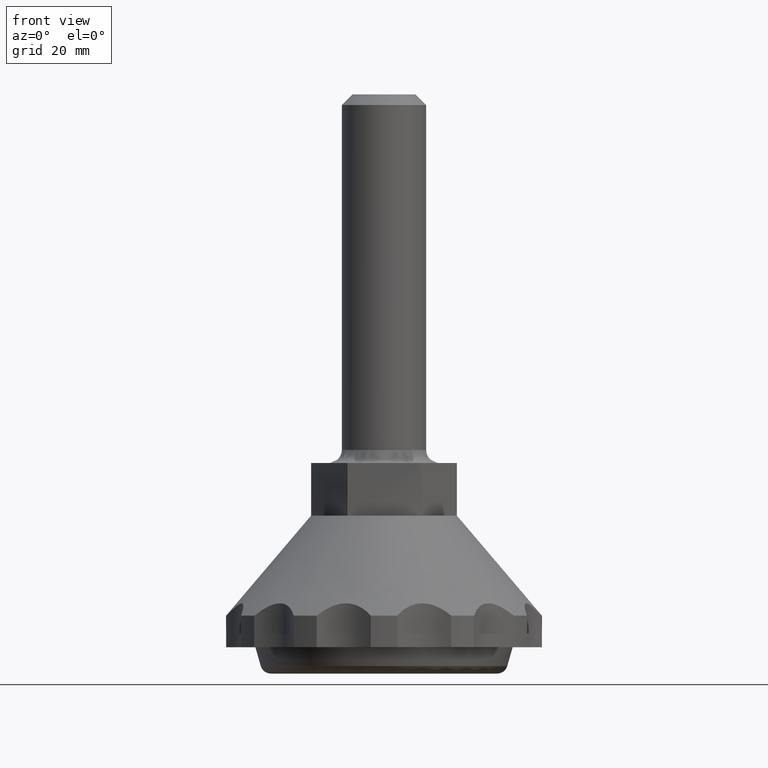
[diagram: clean part render]
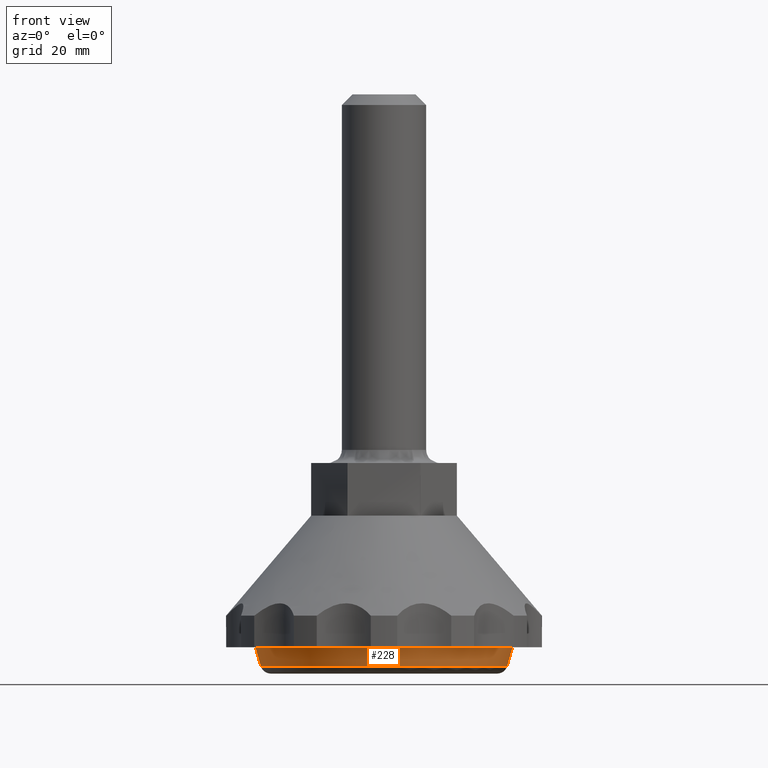
[diagram: same view with one face highlighted and labeled with its STEP entity id]
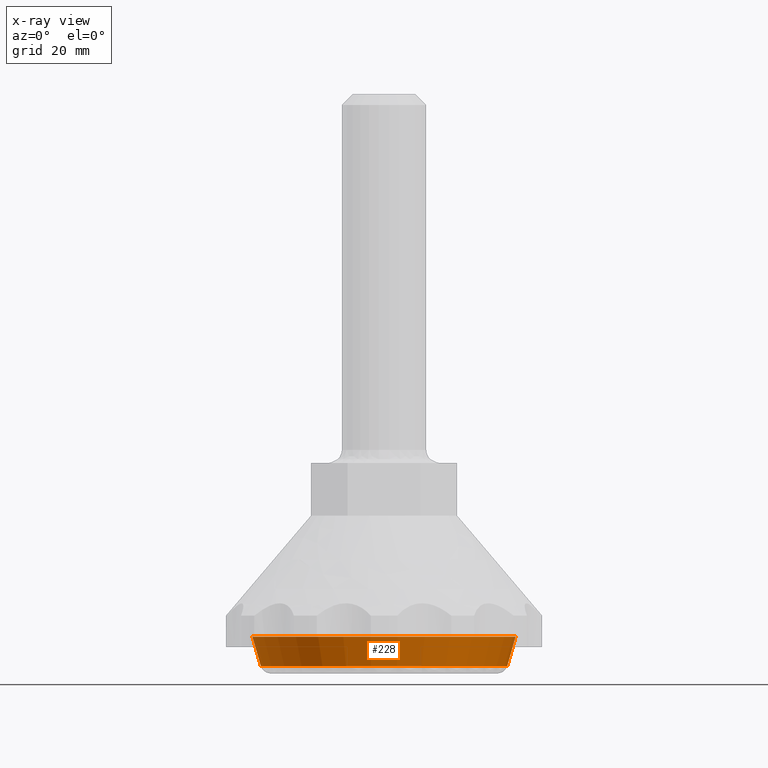
[diagram: x-ray of the same camera — body ghosted, the highlighted face saturated]
A machine part, front view. The second image highlights one B-rep face of the part: STEP entity #228.
The next image is the same camera in x-ray: the body ghosted, the highlighted face saturated — about 0% of this face is hidden behind the body in this view.
In plain terms, the highlighted face is a freeform B-spline surface patch.
Its self-contained STEP definition (entity closure, byte-faithful):
#228=ADVANCED_FACE('',(#721),#720,.T.);
#720=( BOUNDED_SURFACE() B_SPLINE_SURFACE( 2,1,((#1684,#1685),(#1686,#1687),(#1688,#1689),(#1690,#1691),(#1692,#1693)), .UNSPECIFIED.,.F.,.F.,.F.) B_SPLINE_SURFACE_WITH_KNOTS((3,2,3),(2,2),(0.00000000000E+00,5.00000000000E-01,1.00000000000E+00),(0.00000000000E+00,1.00000000000E+00), .UNSPECIFIED. ) GEOMETRIC_REPRESENTATION_ITEM() RATIONAL_B_SPLINE_SURFACE(((1.00000000000E+00,1.00000000000E+00),(7.07106781187E-01,7.07106781187E-01),(1.00000000000E+00,1.00000000000E+00),(7.07106781187E-01,7.07106781187E-01),(1.00000000000E+00,1.00000000000E+00))) REPRESENTATION_ITEM('') SURFACE() );
#721=FACE_OUTER_BOUND('',#1694,.T.);
#1684=CARTESIAN_POINT('',(-2.34144448943E+01,-5.73488499873E-15,1.45055774088E+00));
#1685=CARTESIAN_POINT('',(-2.49999994104E+01,-6.12323385134E-15,7.00000000000E+00));
#1686=CARTESIAN_POINT('',(-2.34144448943E+01,-2.34144448943E+01,1.45055774088E+00));
#1687=CARTESIAN_POINT('',(-2.49999994104E+01,-2.49999994104E+01,7.00000000000E+00));
#1688=CARTESIAN_POINT('',(4.30116374905E-15,-2.34144448943E+01,1.45055774088E+00));
#1689=CARTESIAN_POINT('',(4.59242538850E-15,-2.49999994104E+01,7.00000000000E+00));
#1690=CARTESIAN_POINT('',(2.34144448943E+01,-2.34144448943E+01,1.45055774088E+00));
#1691=CARTESIAN_POINT('',(2.49999994104E+01,-2.49999994104E+01,7.00000000000E+00));
#1692=CARTESIAN_POINT('',(2.34144448943E+01,2.86744249937E-15,1.45055774088E+00));
#1693=CARTESIAN_POINT('',(2.49999994104E+01,3.06161692567E-15,7.00000000000E+00));
#1694=EDGE_LOOP('',(#2382,#2383,#2384,#2385));
#2382=ORIENTED_EDGE('',*,*,#2799,.T.);
#2383=ORIENTED_EDGE('',*,*,#2800,.F.);
#2384=ORIENTED_EDGE('',*,*,#2796,.F.);
#2385=ORIENTED_EDGE('',*,*,#2801,.T.);
#2796=EDGE_CURVE('',#3626,#3633,#3634,.T.);
#2799=EDGE_CURVE('',#3652,#3653,#3654,.T.);
#2800=EDGE_CURVE('',#3633,#3653,#3660,.T.);
#2801=EDGE_CURVE('',#3626,#3652,#3666,.T.);
#3626=VERTEX_POINT('',#5073);
#3633=VERTEX_POINT('',#5077);
#3634=CIRCLE('',#5081,2.34144448943E+01);
#3652=VERTEX_POINT('',#5091);
#3653=VERTEX_POINT('',#5092);
#3654=CIRCLE('',#5096,2.49999994104E+01);
#3660=(BOUNDED_CURVE() B_SPLINE_CURVE(1,(#5097,#5098),.UNSPECIFIED.,.F.,.F.) B_SPLINE_CURVE_WITH_KNOTS((2,2),(0.00000000000E+00,1.00000000000E+00),.UNSPECIFIED.) CURVE() GEOMETRIC_REPRESENTATION_ITEM() RATIONAL_B_SPLINE_CURVE((1.00000000000E+00,1.00000000000E+00)) REPRESENTATION_ITEM('') );
#3666=(BOUNDED_CURVE() B_SPLINE_CURVE(1,(#5099,#5100),.UNSPECIFIED.,.F.,.F.) B_SPLINE_CURVE_WITH_KNOTS((2,2),(0.00000000000E+00,1.00000000000E+00),.UNSPECIFIED.) CURVE() GEOMETRIC_REPRESENTATION_ITEM() RATIONAL_B_SPLINE_CURVE((7.50000000000E-01,7.50000000000E-01)) REPRESENTATION_ITEM('') );
#5073=CARTESIAN_POINT('',(2.34144448943E+01,-1.18423789293E-15,1.45055774088E+00));
#5077=CARTESIAN_POINT('',(-2.34144448943E+01,0.00000000000E+00,1.45055774088E+00));
#5078=CARTESIAN_POINT('',(0.00000000000E+00,0.00000000000E+00,1.45055774088E+00));
#5079=DIRECTION('',(-0.00000000000E+00,0.00000000000E+00,-1.00000000000E+00));
#5080=DIRECTION('',(-1.00000000000E+00,-1.22460635382E-16,0.00000000000E+00));
#5081=AXIS2_PLACEMENT_3D('',#5078,#5079,#5080);
#5091=CARTESIAN_POINT('',(2.49999994104E+01,-1.18423789293E-15,7.00000000000E+00));
#5092=CARTESIAN_POINT('',(-2.49999994104E+01,0.00000000000E+00,7.00000000000E+00));
#5093=CARTESIAN_POINT('',(0.00000000000E+00,0.00000000000E+00,7.00000000000E+00));
#5094=DIRECTION('',(-0.00000000000E+00,0.00000000000E+00,-1.00000000000E+00));
#5095=DIRECTION('',(-1.00000000000E+00,-1.22460635382E-16,0.00000000000E+00));
#5096=AXIS2_PLACEMENT_3D('',#5093,#5094,#5095);
#5097=CARTESIAN_POINT('',(-2.34144448943E+01,-5.73469559776E-15,1.45055774088E+00));
#5098=CARTESIAN_POINT('',(-2.49999994104E+01,-6.12303162472E-15,7.00000000000E+00));
#5099=CARTESIAN_POINT('',(2.34144448943E+01,8.28966525053E-15,1.45055774088E+00));
#5100=CARTESIAN_POINT('',(2.49999994104E+01,8.28966525053E-15,7.00000000000E+00));